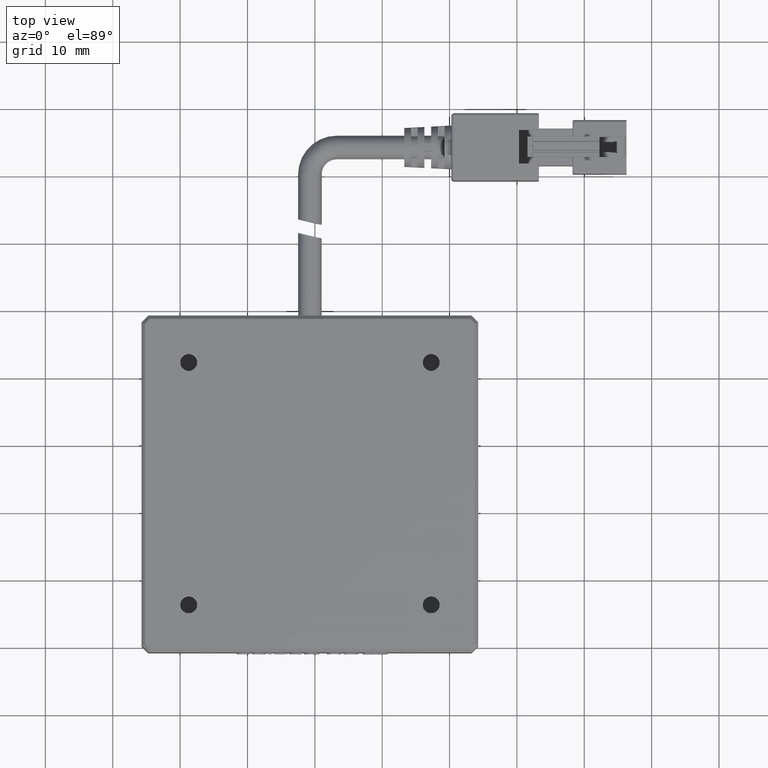
[diagram: clean part render]
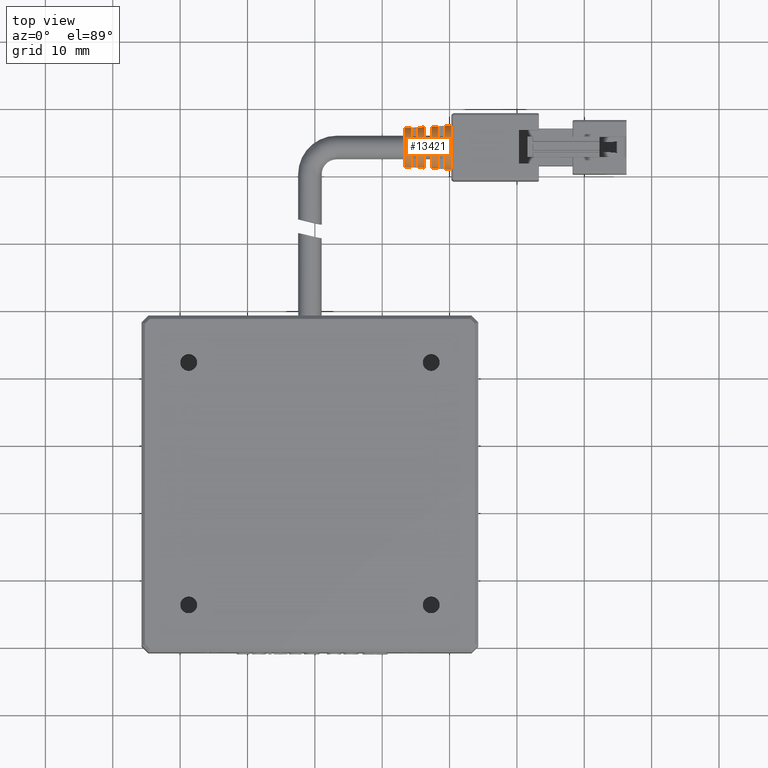
[diagram: same view with one face highlighted and labeled with its STEP entity id]
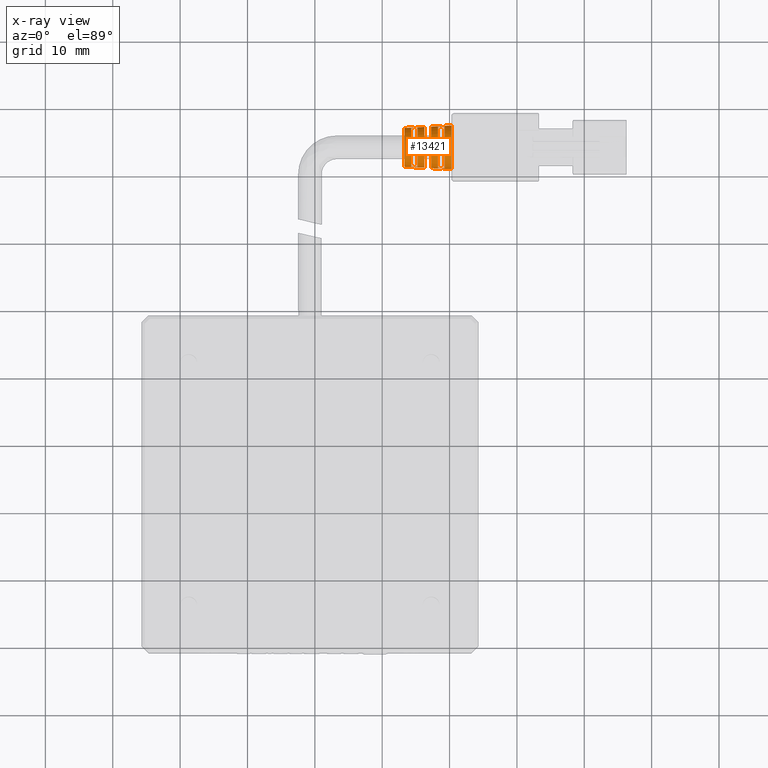
[diagram: x-ray of the same camera — body ghosted, the highlighted face saturated]
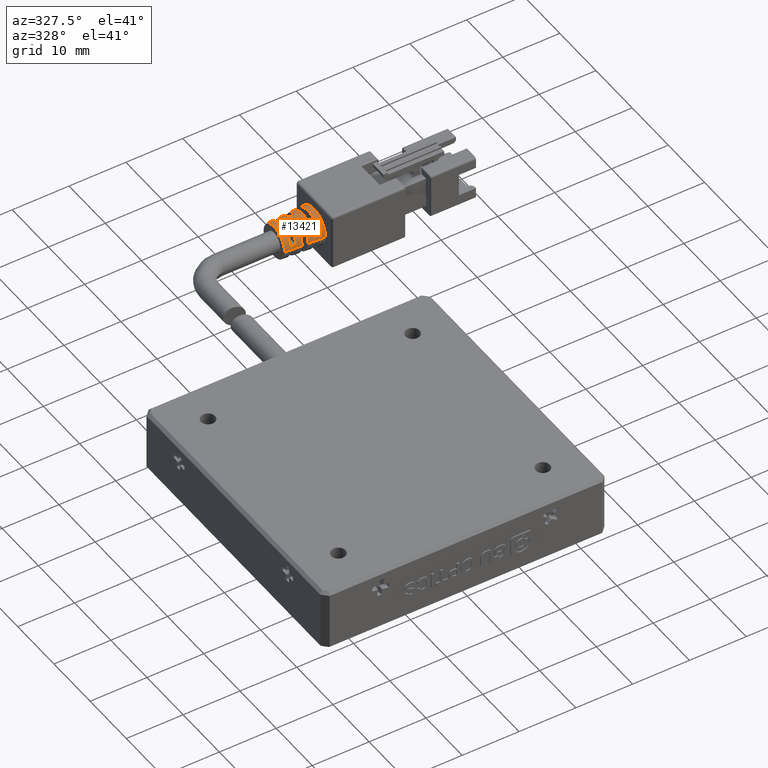
[diagram: same view with one face highlighted and labeled with its STEP entity id]
A machine part, top view. The second image highlights one B-rep face of the part: STEP entity #13421.
The next image is the same camera in x-ray: the body ghosted, the highlighted face saturated — about 0% of this face is hidden behind the body in this view.
A second angle (auxiliary view) of the same face is appended — the face is thin or edge-on in the first view.
In plain terms, the highlighted conical surface has half-angle 3 deg.
Its self-contained STEP definition (entity closure, byte-faithful):
#28 = EDGE_CURVE ( 'NONE', #25497, #1631, #21482, .T. ) ;
#208 = DIRECTION ( 'NONE',  ( 0.0000000000000000000, 1.000000000000000000, 1.711690465343780600E-015 ) ) ;
#464 = CARTESIAN_POINT ( 'NONE',  ( 37.26702531646982000, 64.21113924050634100, -1.250000000000000700 ) ) ;
#867 = CARTESIAN_POINT ( 'NONE',  ( 39.26702531647462300, 67.35193468274553700, -0.6500000000000010200 ) ) ;
#1142 = CARTESIAN_POINT ( 'NONE',  ( 33.26702531645072000, 61.32799369548783400, -1.250000000000000000 ) ) ;
#1151 = VERTEX_POINT ( 'NONE', #17470 ) ;
#1162 = CARTESIAN_POINT ( 'NONE',  ( 36.26702531644617300, 63.61113924050633300, 1.730577619171422600 ) ) ;
#1178 = DIRECTION ( 'NONE',  ( 0.0000000000000000000, 1.000000000000000000, -9.984861047838719200E-016 ) ) ;
#1242 = CARTESIAN_POINT ( 'NONE',  ( 34.93369162600836100, 61.30187223562795400, -0.6500000000000011300 ) ) ;
#1284 = CARTESIAN_POINT ( 'NONE',  ( 37.26702531646699200, 63.61113924050633300, 1.784018372051399800 ) ) ;
#1432 = CIRCLE ( 'NONE', #35908, 3.040368882866448400 ) ;
#1454 = CIRCLE ( 'NONE', #11590, 3.092776662151075500 ) ;
#1622 = CARTESIAN_POINT ( 'NONE',  ( 35.26702531645798900, 61.28403972792824600, -0.6500000000000011300 ) ) ;
#1631 = VERTEX_POINT ( 'NONE', #11769 ) ;
#1773 = EDGE_CURVE ( 'NONE', #35127, #3655, #24189, .T. ) ;
#1798 = CIRCLE ( 'NONE', #34447, 3.249999999999017700 ) ;
#2259 = FACE_BOUND ( 'NONE', #27047, .T. ) ;
#2497 = CARTESIAN_POINT ( 'NONE',  ( 38.26702531644808400, 61.12371552960575400, -0.6500000000000006900 ) ) ;
#2747 = CARTESIAN_POINT ( 'NONE',  ( 40.26702531622834900, 60.96113924051923800, -1.250000000000000000 ) ) ;
#3177 = B_SPLINE_CURVE_WITH_KNOTS ( 'NONE', 3,
 ( #27439, #1242, #24202, #7928 ),
 .UNSPECIFIED., .F., .F.,
 ( 4, 4 ),
 ( 4.726604209672303400E-016, 0.001001431039896517200 ),
 .UNSPECIFIED. ) ;
#3184 = CARTESIAN_POINT ( 'NONE',  ( 39.26702531646754600, 61.07034379826750800, -0.6500000000000003600 ) ) ;
#3358 = AXIS2_PLACEMENT_3D ( 'NONE', #464, #23237, #3741 ) ;
#3585 = EDGE_CURVE ( 'NONE', #4081, #33247, #1454, .T. ) ;
#3638 = CARTESIAN_POINT ( 'NONE',  ( 36.26702531644042400, 64.81113924050633600, 1.730577619171115100 ) ) ;
#3655 = VERTEX_POINT ( 'NONE', #6292 ) ;
#3721 = CIRCLE ( 'NONE', #3358, 3.092776662151075500 ) ;
#3741 = DIRECTION ( 'NONE',  ( 0.0000000000000000000, 1.000000000000000000, -7.011189561495362000E-017 ) ) ;
#3761 = LINE ( 'NONE', #28053, #11384 ) ;
#3933 = EDGE_CURVE ( 'NONE', #7211, #39941, #3177, .T. ) ;
#4081 = VERTEX_POINT ( 'NONE', #40749 ) ;
#4942 = EDGE_CURVE ( 'NONE', #36843, #16893, #16512, .T. ) ;
#5195 = CARTESIAN_POINT ( 'NONE',  ( 38.26702531644808400, 61.12371552960575400, -0.6500000000000006900 ) ) ;
#5615 = CARTESIAN_POINT ( 'NONE',  ( 39.26702531646754600, 61.07034379826750800, -0.6500000000000003600 ) ) ;
#5994 = CARTESIAN_POINT ( 'NONE',  ( 37.26702531646982000, 64.21113924050634100, -1.250000000000000700 ) ) ;
#6113 = CARTESIAN_POINT ( 'NONE',  ( 40.26702531622834900, 67.46113924049343800, -1.250000000000000900 ) ) ;
#6292 = CARTESIAN_POINT ( 'NONE',  ( 38.26702531645094800, 67.29856295140706400, -0.6500000000000011300 ) ) ;
#6703 = DIRECTION ( 'NONE',  ( 1.000000000000000000, 0.0000000000000000000, 0.0000000000000000000 ) ) ;
#6807 = CARTESIAN_POINT ( 'NONE',  ( 39.26702531647462300, 67.35193468274553700, -0.6500000000000010200 ) ) ;
#7171 = CIRCLE ( 'NONE', #28605, 3.040368882866448400 ) ;
#7211 = VERTEX_POINT ( 'NONE', #1622 ) ;
#7488 = B_SPLINE_CURVE_WITH_KNOTS ( 'NONE', 3,
 ( #23128, #32524, #13291, #3638 ),
 .UNSPECIFIED., .F., .F.,
 ( 4, 4 ),
 ( 1.403651546814124500E-015, 0.001001426938980516500 ),
 .UNSPECIFIED. ) ;
#7508 = ORIENTED_EDGE ( 'NONE', *, *, #3585, .T. ) ;
#7928 = CARTESIAN_POINT ( 'NONE',  ( 34.26702531647827500, 61.33755727372246000, -0.6500000000000012400 ) ) ;
#7987 = ORIENTED_EDGE ( 'NONE', *, *, #4942, .T. ) ;
#8586 = CARTESIAN_POINT ( 'NONE',  ( 36.60035832392478000, 63.61113924050633300, 1.748397300001395300 ) ) ;
#8811 = CIRCLE ( 'NONE', #27860, 2.987961103584790800 ) ;
#9093 = EDGE_CURVE ( 'NONE', #24411, #22479, #24780, .T. ) ;
#9279 = DIRECTION ( 'NONE',  ( 0.0000000000000000000, 1.000000000000000000, -7.011189561495362000E-017 ) ) ;
#9393 = DIRECTION ( 'NONE',  ( 0.9986295347545816000, 0.05233595624279531500, -4.539420596603596700E-018 ) ) ;
#9409 = ORIENTED_EDGE ( 'NONE', *, *, #21406, .T. ) ;
#9561 = DIRECTION ( 'NONE',  ( 0.9986295347545816000, 0.05233595624279531500, -4.539420596603596700E-018 ) ) ;
#10228 = AXIS2_PLACEMENT_3D ( 'NONE', #18291, #21611, #41192 ) ;
#10550 = CARTESIAN_POINT ( 'NONE',  ( 39.26702531647936900, 64.21113924050634100, -1.250000000000000700 ) ) ;
#10869 = FACE_BOUND ( 'NONE', #15500, .T. ) ;
#11180 = ORIENTED_EDGE ( 'NONE', *, *, #18906, .T. ) ;
#11384 = VECTOR ( 'NONE', #11796, 1000.000000000000200 ) ;
#11590 = AXIS2_PLACEMENT_3D ( 'NONE', #5994, #28770, #9279 ) ;
#11591 = DIRECTION ( 'NONE',  ( 1.000000000000000000, 0.0000000000000000000, 0.0000000000000000000 ) ) ;
#11686 = ORIENTED_EDGE ( 'NONE', *, *, #19260, .T. ) ;
#11769 = CARTESIAN_POINT ( 'NONE',  ( 36.26702531643662300, 61.17077035763989600, -1.250000000000000000 ) ) ;
#11796 = DIRECTION ( 'NONE',  ( 0.9986295347545816000, -0.05233595624279531500, 1.094872672590911800E-017 ) ) ;
#12313 = CIRCLE ( 'NONE', #37011, 2.883145545018506200 ) ;
#13104 = ORIENTED_EDGE ( 'NONE', *, *, #15348, .T. ) ;
#13291 = CARTESIAN_POINT ( 'NONE',  ( 36.60035832392478000, 64.81113924050633600, 1.748397300001394800 ) ) ;
#13421 = ADVANCED_FACE ( 'NONE', ( #10869, #2259, #36854 ), #31779, .T. ) ;
#13840 = DIRECTION ( 'NONE',  ( 0.0000000000000000000, 1.000000000000000000, -6.781366088276698700E-017 ) ) ;
#14950 = VERTEX_POINT ( 'NONE', #33466 ) ;
#15017 = CARTESIAN_POINT ( 'NONE',  ( 33.26702531645072000, 67.09428478552484900, -1.250000000000000900 ) ) ;
#15036 = CARTESIAN_POINT ( 'NONE',  ( 35.26702531645936700, 67.13823875308449400, -0.6500000000000015800 ) ) ;
#15271 = CARTESIAN_POINT ( 'NONE',  ( 37.26702531646699200, 63.61113924050633300, 1.784018372051399800 ) ) ;
#15348 = EDGE_CURVE ( 'NONE', #16893, #14950, #3721, .T. ) ;
#15500 = EDGE_LOOP ( 'NONE', ( #16508, #28740, #34351, #15705 ) ) ;
#15705 = ORIENTED_EDGE ( 'NONE', *, *, #1773, .T. ) ;
#16087 = LINE ( 'NONE', #25800, #23763 ) ;
#16508 = ORIENTED_EDGE ( 'NONE', *, *, #23879, .T. ) ;
#16512 = B_SPLINE_CURVE_WITH_KNOTS ( 'NONE', 3,
 ( #34746, #8586, #34582, #15271 ),
 .UNSPECIFIED., .F., .F.,
 ( 4, 4 ),
 ( 1.945664656350847900E-015, 0.001001426938979536800 ),
 .UNSPECIFIED. ) ;
#16573 = VERTEX_POINT ( 'NONE', #32342 ) ;
#16667 = ORIENTED_EDGE ( 'NONE', *, *, #35082, .T. ) ;
#16730 = B_SPLINE_CURVE_WITH_KNOTS ( 'NONE', 3,
 ( #24748, #40889, #34483, #15036 ),
 .UNSPECIFIED., .F., .F.,
 ( 4, 4 ),
 ( 2.821323884305459600E-015, 0.001001431039903069900 ),
 .UNSPECIFIED. ) ;
#16893 = VERTEX_POINT ( 'NONE', #1284 ) ;
#16967 = VERTEX_POINT ( 'NONE', #24933 ) ;
#17470 = CARTESIAN_POINT ( 'NONE',  ( 35.26702531645936700, 67.13823875308449400, -0.6500000000000015800 ) ) ;
#17946 = CARTESIAN_POINT ( 'NONE',  ( 40.26702531645572200, 64.21113924050634100, -1.250000000000000700 ) ) ;
#18213 = DIRECTION ( 'NONE',  ( -1.000000000000000000, -0.0000000000000000000, -0.0000000000000000000 ) ) ;
#18291 = CARTESIAN_POINT ( 'NONE',  ( 40.26702531622834900, 64.21113924050634100, -1.250000000000000700 ) ) ;
#18681 = CARTESIAN_POINT ( 'NONE',  ( 38.93369169520680400, 61.08812897988507700, -0.6500000000000004700 ) ) ;
#18906 = EDGE_CURVE ( 'NONE', #33247, #23752, #7488, .T. ) ;
#18933 = CARTESIAN_POINT ( 'NONE',  ( 36.26702531644042400, 64.81113924050633600, 1.730577619171115100 ) ) ;
#19001 = CARTESIAN_POINT ( 'NONE',  ( 38.26702531644617300, 64.21113924050634100, -1.250000000000000700 ) ) ;
#19260 = EDGE_CURVE ( 'NONE', #39941, #27340, #24183, .T. ) ;
#19429 = ORIENTED_EDGE ( 'NONE', *, *, #38951, .T. ) ;
#19671 = DIRECTION ( 'NONE',  ( -1.000000000000000000, -0.0000000000000000000, -0.0000000000000000000 ) ) ;
#20140 = ORIENTED_EDGE ( 'NONE', *, *, #3933, .T. ) ;
#20306 = EDGE_CURVE ( 'NONE', #27340, #1151, #16730, .T. ) ;
#20343 = CARTESIAN_POINT ( 'NONE',  ( 38.93369169520680400, 67.33414950112761200, -0.6500000000000011300 ) ) ;
#20673 = DIRECTION ( 'NONE',  ( -1.000000000000000000, -0.0000000000000000000, -0.0000000000000000000 ) ) ;
#20836 = ORIENTED_EDGE ( 'NONE', *, *, #31508, .T. ) ;
#21264 = DIRECTION ( 'NONE',  ( 0.0000000000000000000, 1.000000000000000000, -6.672013369143582000E-017 ) ) ;
#21406 = EDGE_CURVE ( 'NONE', #14950, #16573, #3761, .T. ) ;
#21482 = LINE ( 'NONE', #2747, #29136 ) ;
#21611 = DIRECTION ( 'NONE',  ( 1.000000000000000000, 0.0000000000000000000, 0.0000000000000000000 ) ) ;
#21997 = CARTESIAN_POINT ( 'NONE',  ( 38.60035835680047000, 61.10591946374124500, -0.6500000000000005800 ) ) ;
#22338 = DIRECTION ( 'NONE',  ( 0.0000000000000000000, 1.000000000000000000, -6.894363066298365700E-017 ) ) ;
#22349 = CARTESIAN_POINT ( 'NONE',  ( 34.26702531647827500, 61.33755727372246000, -0.6500000000000012400 ) ) ;
#22393 = DIRECTION ( 'NONE',  ( 0.9986295347545816000, -0.05233595624279531500, 1.094872672590911800E-017 ) ) ;
#22479 = VERTEX_POINT ( 'NONE', #3184 ) ;
#23128 = CARTESIAN_POINT ( 'NONE',  ( 37.26702531646277100, 64.81113924050633600, 1.784018372051174200 ) ) ;
#23237 = DIRECTION ( 'NONE',  ( 1.000000000000000000, 0.0000000000000000000, 0.0000000000000000000 ) ) ;
#23752 = VERTEX_POINT ( 'NONE', #18933 ) ;
#23763 = VECTOR ( 'NONE', #9561, 1000.000000000000200 ) ;
#23879 = EDGE_CURVE ( 'NONE', #3655, #24411, #38840, .T. ) ;
#24183 = CIRCLE ( 'NONE', #36856, 2.935553324303133300 ) ;
#24189 = CIRCLE ( 'NONE', #28174, 3.145184441432733000 ) ;
#24202 = CARTESIAN_POINT ( 'NONE',  ( 34.60035828589212100, 61.31971129328074700, -0.6500000000000012400 ) ) ;
#24411 = VERTEX_POINT ( 'NONE', #6807 ) ;
#24748 = CARTESIAN_POINT ( 'NONE',  ( 34.26702531646981200, 67.08472120728976100, -0.6500000000000016900 ) ) ;
#24780 = CIRCLE ( 'NONE', #41859, 3.197592220717360200 ) ;
#24933 = CARTESIAN_POINT ( 'NONE',  ( 36.26702531643662300, 67.25150812337278700, -1.250000000000000900 ) ) ;
#25456 = EDGE_LOOP ( 'NONE', ( #36229, #32720, #19429, #7987, #13104, #9409, #37838, #32229, #7508, #11180, #20836, #29332 ) ) ;
#25497 = VERTEX_POINT ( 'NONE', #1142 ) ;
#25800 = CARTESIAN_POINT ( 'NONE',  ( 40.26702531622834900, 67.46113924049343800, -1.250000000000000900 ) ) ;
#26184 = CARTESIAN_POINT ( 'NONE',  ( 33.26702531645072000, 64.21113924050634100, -1.250000000000000700 ) ) ;
#26484 = CARTESIAN_POINT ( 'NONE',  ( 38.26702531645094800, 67.29856295140706400, -0.6500000000000011300 ) ) ;
#26869 = CARTESIAN_POINT ( 'NONE',  ( 34.26702531646981200, 67.08472120728976100, -0.6500000000000016900 ) ) ;
#27000 = ORIENTED_EDGE ( 'NONE', *, *, #20306, .T. ) ;
#27047 = EDGE_LOOP ( 'NONE', ( #27000, #16667, #20140, #11686 ) ) ;
#27340 = VERTEX_POINT ( 'NONE', #26869 ) ;
#27439 = CARTESIAN_POINT ( 'NONE',  ( 35.26702531645798900, 61.28403972792824600, -0.6500000000000011300 ) ) ;
#27860 = AXIS2_PLACEMENT_3D ( 'NONE', #31092, #11591, #34310 ) ;
#27957 = CARTESIAN_POINT ( 'NONE',  ( 40.26702531645572200, 67.46113924050536100, -1.250000000000000900 ) ) ;
#28053 = CARTESIAN_POINT ( 'NONE',  ( 40.26702531622834900, 60.96113924051923800, -1.250000000000000000 ) ) ;
#28174 = AXIS2_PLACEMENT_3D ( 'NONE', #19001, #41751, #22338 ) ;
#28605 = AXIS2_PLACEMENT_3D ( 'NONE', #40114, #20673, #1178 ) ;
#28634 = VERTEX_POINT ( 'NONE', #27957 ) ;
#28733 = CARTESIAN_POINT ( 'NONE',  ( 37.26702531646277100, 64.81113924050633600, 1.784018372051174200 ) ) ;
#28740 = ORIENTED_EDGE ( 'NONE', *, *, #9093, .T. ) ;
#28770 = DIRECTION ( 'NONE',  ( 1.000000000000000000, 0.0000000000000000000, 0.0000000000000000000 ) ) ;
#29136 = VECTOR ( 'NONE', #22393, 1000.000000000000200 ) ;
#29332 = ORIENTED_EDGE ( 'NONE', *, *, #39449, .F. ) ;
#29476 = DIRECTION ( 'NONE',  ( 0.0000000000000000000, 1.000000000000000000, -7.520967329303143100E-017 ) ) ;
#30188 = EDGE_CURVE ( 'NONE', #16573, #28634, #1798, .T. ) ;
#31092 = CARTESIAN_POINT ( 'NONE',  ( 35.26702531646027000, 64.21113924050634100, -1.250000000000000700 ) ) ;
#31508 = EDGE_CURVE ( 'NONE', #23752, #16967, #7171, .T. ) ;
#31779 = CONICAL_SURFACE ( 'NONE', #10228, 3.249999999987096500, 0.05235987755968116900 ) ;
#31879 = EDGE_CURVE ( 'NONE', #41200, #25497, #12313, .T. ) ;
#32229 = ORIENTED_EDGE ( 'NONE', *, *, #37579, .F. ) ;
#32342 = CARTESIAN_POINT ( 'NONE',  ( 40.26702531645572200, 60.96113924050732900, -1.250000000000000000 ) ) ;
#32524 = CARTESIAN_POINT ( 'NONE',  ( 36.93369166311235600, 64.81113924050633600, 1.766210776928611700 ) ) ;
#32720 = ORIENTED_EDGE ( 'NONE', *, *, #28, .T. ) ;
#33247 = VERTEX_POINT ( 'NONE', #28733 ) ;
#33308 = DIRECTION ( 'NONE',  ( 1.000000000000000000, 0.0000000000000000000, 0.0000000000000000000 ) ) ;
#33466 = CARTESIAN_POINT ( 'NONE',  ( 37.26702531646982000, 61.11836257835526000, -1.250000000000000000 ) ) ;
#34233 = B_SPLINE_CURVE_WITH_KNOTS ( 'NONE', 3,
 ( #5615, #18681, #21997, #2497 ),
 .UNSPECIFIED., .F., .F.,
 ( 4, 4 ),
 ( 2.341740480690032800E-015, 0.001001423258043095100 ),
 .UNSPECIFIED. ) ;
#34310 = DIRECTION ( 'NONE',  ( 0.0000000000000000000, 1.000000000000000000, -7.257137123938718400E-017 ) ) ;
#34351 = ORIENTED_EDGE ( 'NONE', *, *, #35196, .T. ) ;
#34447 = AXIS2_PLACEMENT_3D ( 'NONE', #17946, #40698, #21264 ) ;
#34483 = CARTESIAN_POINT ( 'NONE',  ( 34.93369162600836100, 67.12040624538471400, -0.6500000000000015800 ) ) ;
#34582 = CARTESIAN_POINT ( 'NONE',  ( 36.93369166311235600, 63.61113924050633300, 1.766210776928611700 ) ) ;
#34746 = CARTESIAN_POINT ( 'NONE',  ( 36.26702531644617300, 63.61113924050633300, 1.730577619171422600 ) ) ;
#35082 = EDGE_CURVE ( 'NONE', #1151, #7211, #8811, .T. ) ;
#35127 = VERTEX_POINT ( 'NONE', #5195 ) ;
#35196 = EDGE_CURVE ( 'NONE', #22479, #35127, #34233, .T. ) ;
#35267 = VECTOR ( 'NONE', #9393, 1000.000000000000200 ) ;
#35908 = AXIS2_PLACEMENT_3D ( 'NONE', #39152, #19671, #208 ) ;
#36229 = ORIENTED_EDGE ( 'NONE', *, *, #31879, .T. ) ;
#36288 = LINE ( 'NONE', #6113, #35267 ) ;
#36567 = CARTESIAN_POINT ( 'NONE',  ( 38.60035835680046300, 67.31635901727143800, -0.6500000000000010200 ) ) ;
#36843 = VERTEX_POINT ( 'NONE', #1162 ) ;
#36854 = FACE_OUTER_BOUND ( 'NONE', #25456, .T. ) ;
#36856 = AXIS2_PLACEMENT_3D ( 'NONE', #37728, #18213, #40965 ) ;
#37011 = AXIS2_PLACEMENT_3D ( 'NONE', #26184, #6703, #29476 ) ;
#37579 = EDGE_CURVE ( 'NONE', #4081, #28634, #36288, .T. ) ;
#37728 = CARTESIAN_POINT ( 'NONE',  ( 34.26702531648391700, 64.21113924050634100, -1.250000000000000700 ) ) ;
#37838 = ORIENTED_EDGE ( 'NONE', *, *, #30188, .T. ) ;
#38840 = B_SPLINE_CURVE_WITH_KNOTS ( 'NONE', 3,
 ( #26484, #36567, #20343, #867 ),
 .UNSPECIFIED., .F., .F.,
 ( 4, 4 ),
 ( 9.453208419344606800E-016, 0.001001423258045922700 ),
 .UNSPECIFIED. ) ;
#38951 = EDGE_CURVE ( 'NONE', #1631, #36843, #1432, .T. ) ;
#39152 = CARTESIAN_POINT ( 'NONE',  ( 36.26702531643662300, 64.21113924050634100, -1.250000000000000700 ) ) ;
#39449 = EDGE_CURVE ( 'NONE', #41200, #16967, #16087, .T. ) ;
#39941 = VERTEX_POINT ( 'NONE', #22349 ) ;
#40114 = CARTESIAN_POINT ( 'NONE',  ( 36.26702531643662300, 64.21113924050634100, -1.250000000000000700 ) ) ;
#40698 = DIRECTION ( 'NONE',  ( -1.000000000000000000, -0.0000000000000000000, -0.0000000000000000000 ) ) ;
#40749 = CARTESIAN_POINT ( 'NONE',  ( 37.26702531646982000, 67.30391590265740800, -1.250000000000000900 ) ) ;
#40889 = CARTESIAN_POINT ( 'NONE',  ( 34.60035828589212100, 67.10256718773193500, -0.6500000000000016900 ) ) ;
#40965 = DIRECTION ( 'NONE',  ( 0.0000000000000000000, 1.000000000000000000, 1.698940350408131500E-015 ) ) ;
#41192 = DIRECTION ( 'NONE',  ( 0.0000000000000000000, 1.000000000000000000, -6.672013369168055200E-017 ) ) ;
#41200 = VERTEX_POINT ( 'NONE', #15017 ) ;
#41751 = DIRECTION ( 'NONE',  ( -1.000000000000000000, -0.0000000000000000000, -0.0000000000000000000 ) ) ;
#41859 = AXIS2_PLACEMENT_3D ( 'NONE', #10550, #33308, #13840 ) ;